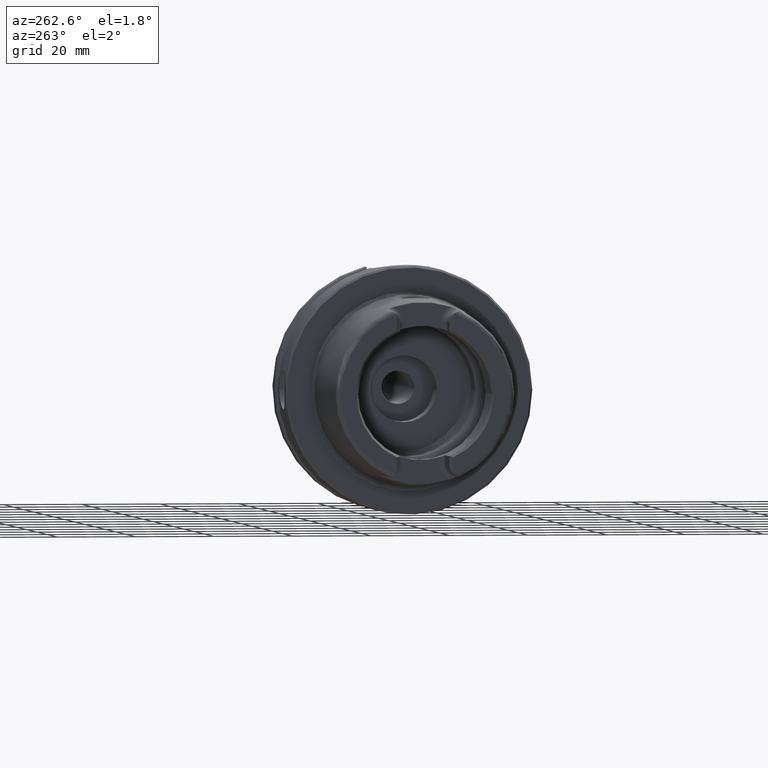
[diagram: clean part render]
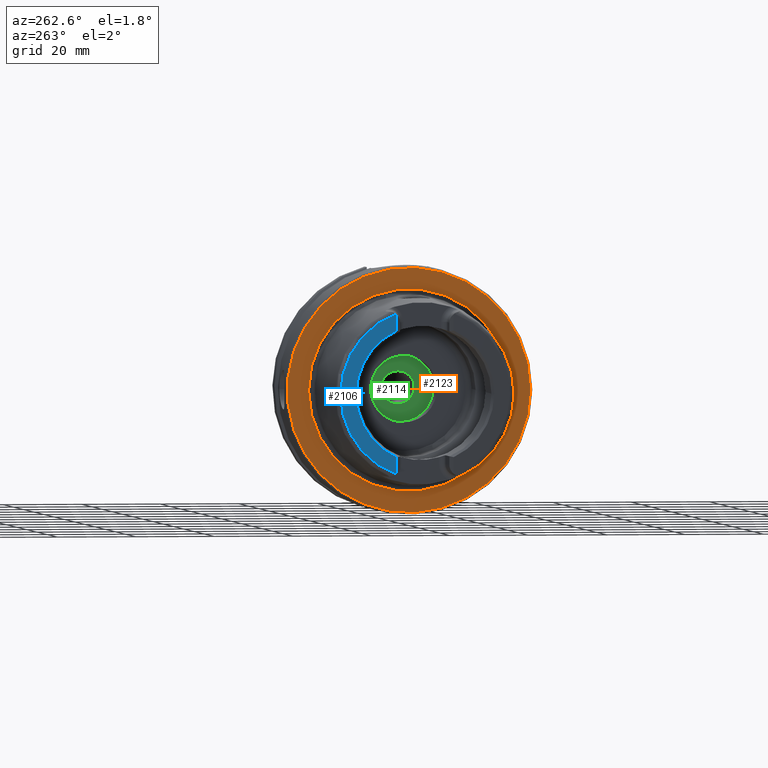
[diagram: same view with three faces highlighted in distinct colors, each labeled with its STEP entity id]
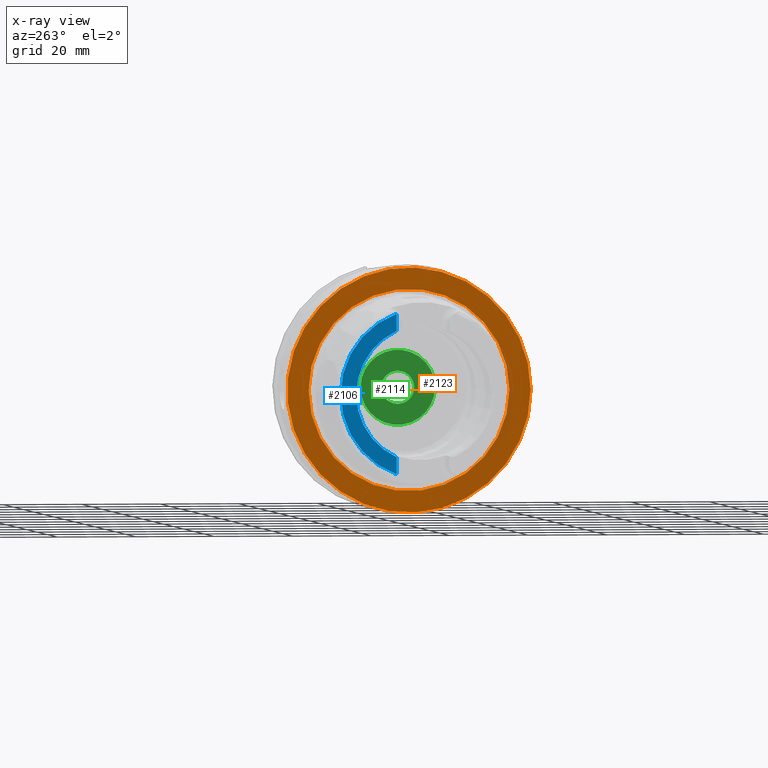
[diagram: x-ray of the same camera — body ghosted, the three highlighted faces saturated]
A machine part, auxiliary view with three faces highlighted in distinct colors.
The next image is the same camera in x-ray (body ghosted, the three faces saturated) — at least one of them is partly hidden behind the body in this view.
Their STEP definitions:

[orange] entity #2123 — the highlighted planar face has unit normal (-1, 0, 0).
#101=FACE_BOUND('',#464,.T.);
#143=PLANE('',#2399);
#330=FACE_OUTER_BOUND('',#463,.T.);
#463=EDGE_LOOP('',(#1969));
#464=EDGE_LOOP('',(#1970));
#812=CIRCLE('',#2398,25.5879092835167);
#813=CIRCLE('',#2400,31.);
#1022=VERTEX_POINT('',#4495);
#1023=VERTEX_POINT('',#4499);
#1339=EDGE_CURVE('',#1022,#1022,#812,.T.);
#1340=EDGE_CURVE('',#1023,#1023,#813,.T.);
#1969=ORIENTED_EDGE('',*,*,#1340,.F.);
#1970=ORIENTED_EDGE('',*,*,#1339,.T.);
#2123=ADVANCED_FACE('',(#330,#101),#143,.T.);
#2398=AXIS2_PLACEMENT_3D('',#4497,#3012,#3013);
#2399=AXIS2_PLACEMENT_3D('',#4498,#3014,#3015);
#2400=AXIS2_PLACEMENT_3D('',#4500,#3016,#3017);
#3012=DIRECTION('center_axis',(1.,0.,0.));
#3013=DIRECTION('ref_axis',(0.,0.,-1.));
#3014=DIRECTION('center_axis',(-1.,0.,0.));
#3015=DIRECTION('ref_axis',(0.,0.,1.));
#3016=DIRECTION('center_axis',(1.,0.,0.));
#3017=DIRECTION('ref_axis',(0.,0.,-1.));
#4495=CARTESIAN_POINT('',(-3.55618312575245E-16,-25.5879092835167,-3.13361512009315E-15));
#4497=CARTESIAN_POINT('Origin',(0.,0.,0.));
#4498=CARTESIAN_POINT('Origin',(0.,31.,0.));
#4499=CARTESIAN_POINT('',(-5.89805981832114E-16,-31.,-3.7964050773568E-15));
#4500=CARTESIAN_POINT('Origin',(0.,0.,0.));

[blue] entity #2106 — the highlighted planar face has unit normal (-1, 0, 0).
#137=PLANE('',#2362);
#313=FACE_OUTER_BOUND('',#443,.T.);
#443=EDGE_LOOP('',(#1892,#1893,#1894,#1895,#1896,#1897));
#495=LINE('',#3201,#605);
#505=LINE('',#3294,#615);
#605=VECTOR('',#2551,10.);
#615=VECTOR('',#2589,10.);
#718=CIRCLE('',#2210,2.88);
#724=CIRCLE('',#2225,2.88);
#792=CIRCLE('',#2361,17.5773502691896);
#793=CIRCLE('',#2363,21.5760400159857);
#864=VERTEX_POINT('',#3194);
#867=VERTEX_POINT('',#3199);
#870=VERTEX_POINT('',#3209);
#885=VERTEX_POINT('',#3291);
#886=VERTEX_POINT('',#3293);
#891=VERTEX_POINT('',#3312);
#1090=EDGE_CURVE('',#867,#864,#495,.T.);
#1094=EDGE_CURVE('',#870,#864,#718,.T.);
#1112=EDGE_CURVE('',#885,#886,#505,.T.);
#1119=EDGE_CURVE('',#885,#891,#724,.T.);
#1314=EDGE_CURVE('',#886,#867,#792,.T.);
#1315=EDGE_CURVE('',#870,#891,#793,.T.);
#1892=ORIENTED_EDGE('',*,*,#1090,.F.);
#1893=ORIENTED_EDGE('',*,*,#1314,.F.);
#1894=ORIENTED_EDGE('',*,*,#1112,.F.);
#1895=ORIENTED_EDGE('',*,*,#1119,.T.);
#1896=ORIENTED_EDGE('',*,*,#1315,.F.);
#1897=ORIENTED_EDGE('',*,*,#1094,.T.);
#2106=ADVANCED_FACE('',(#313),#137,.T.);
#2210=AXIS2_PLACEMENT_3D('',#3210,#2559,#2560);
#2225=AXIS2_PLACEMENT_3D('',#3325,#2598,#2599);
#2361=AXIS2_PLACEMENT_3D('',#4441,#2933,#2934);
#2362=AXIS2_PLACEMENT_3D('',#4442,#2935,#2936);
#2363=AXIS2_PLACEMENT_3D('',#4443,#2937,#2938);
#2551=DIRECTION('',(0.,0.,-1.));
#2559=DIRECTION('center_axis',(-1.,0.,0.));
#2560=DIRECTION('ref_axis',(0.,-0.453346760926793,0.891334232685576));
#2589=DIRECTION('',(0.,1.58830189502884E-16,-1.));
#2598=DIRECTION('center_axis',(-1.,0.,0.));
#2599=DIRECTION('ref_axis',(0.,1.,0.));
#2933=DIRECTION('center_axis',(-1.,0.,0.));
#2934=DIRECTION('ref_axis',(0.,-1.,0.));
#2935=DIRECTION('center_axis',(-1.,0.,0.));
#2936=DIRECTION('ref_axis',(0.,0.,1.));
#2937=DIRECTION('center_axis',(1.,0.,0.));
#2938=DIRECTION('ref_axis',(0.,0.,-1.));
#3194=CARTESIAN_POINT('',(-32.,7.27,-20.1717424229271));
#3199=CARTESIAN_POINT('',(-32.,7.27,-16.003447831195));
#3201=CARTESIAN_POINT('',(-32.,7.27,-5.5));
#3209=CARTESIAN_POINT('',(-32.,7.39118810947246,-20.2705658801576));
#3210=CARTESIAN_POINT('Origin',(-32.,9.15,-17.99));
#3291=CARTESIAN_POINT('',(-32.,7.27,20.1717424229271));
#3293=CARTESIAN_POINT('',(-32.,7.27,16.003447831195));
#3294=CARTESIAN_POINT('',(-32.,7.27,8.995));
#3312=CARTESIAN_POINT('',(-32.,7.39118810947246,20.2705658801576));
#3325=CARTESIAN_POINT('Origin',(-32.,9.15,17.99));
#4441=CARTESIAN_POINT('Origin',(-32.,0.,0.));
#4442=CARTESIAN_POINT('Origin',(-32.,21.5760400159857,0.));
#4443=CARTESIAN_POINT('Origin',(-32.,0.,0.));

[green] entity #2114 — the highlighted planar face has unit normal (1, 0, 0).
#98=FACE_BOUND('',#452,.T.);
#140=PLANE('',#2378);
#321=FACE_OUTER_BOUND('',#451,.T.);
#451=EDGE_LOOP('',(#1931));
#452=EDGE_LOOP('',(#1932));
#712=CIRCLE('',#2191,4.2);
#801=CIRCLE('',#2379,9.5);
#850=VERTEX_POINT('',#3127);
#1013=VERTEX_POINT('',#4464);
#1069=EDGE_CURVE('',#850,#850,#712,.T.);
#1324=EDGE_CURVE('',#1013,#1013,#801,.T.);
#1931=ORIENTED_EDGE('',*,*,#1324,.T.);
#1932=ORIENTED_EDGE('',*,*,#1069,.T.);
#2114=ADVANCED_FACE('',(#321,#98),#140,.F.);
#2191=AXIS2_PLACEMENT_3D('',#3128,#2508,#2509);
#2378=AXIS2_PLACEMENT_3D('',#4463,#2968,#2969);
#2379=AXIS2_PLACEMENT_3D('',#4465,#2970,#2971);
#2508=DIRECTION('center_axis',(1.,0.,0.));
#2509=DIRECTION('ref_axis',(0.,0.,1.));
#2968=DIRECTION('center_axis',(1.,0.,0.));
#2969=DIRECTION('ref_axis',(0.,0.,-1.));
#2970=DIRECTION('center_axis',(-1.,0.,0.));
#2971=DIRECTION('ref_axis',(0.,0.,1.));
#3127=CARTESIAN_POINT('',(22.,5.14351655641888E-16,-4.2));
#3128=CARTESIAN_POINT('Origin',(22.,0.,0.));
#4463=CARTESIAN_POINT('Origin',(22.,9.5,0.));
#4464=CARTESIAN_POINT('',(22.,-9.5,1.16341445918999E-15));
#4465=CARTESIAN_POINT('Origin',(22.,0.,0.));